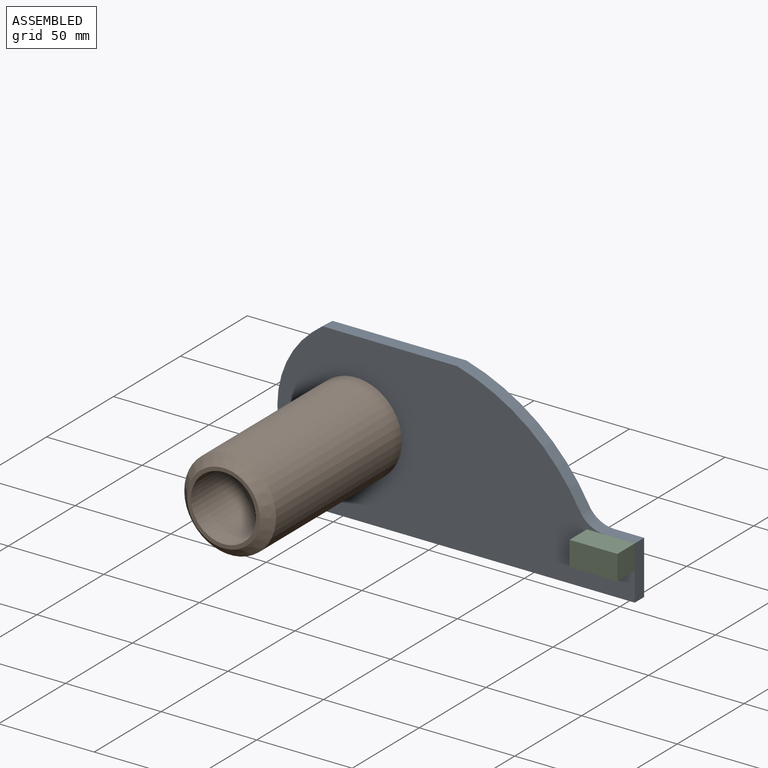
[diagram: assembled view]
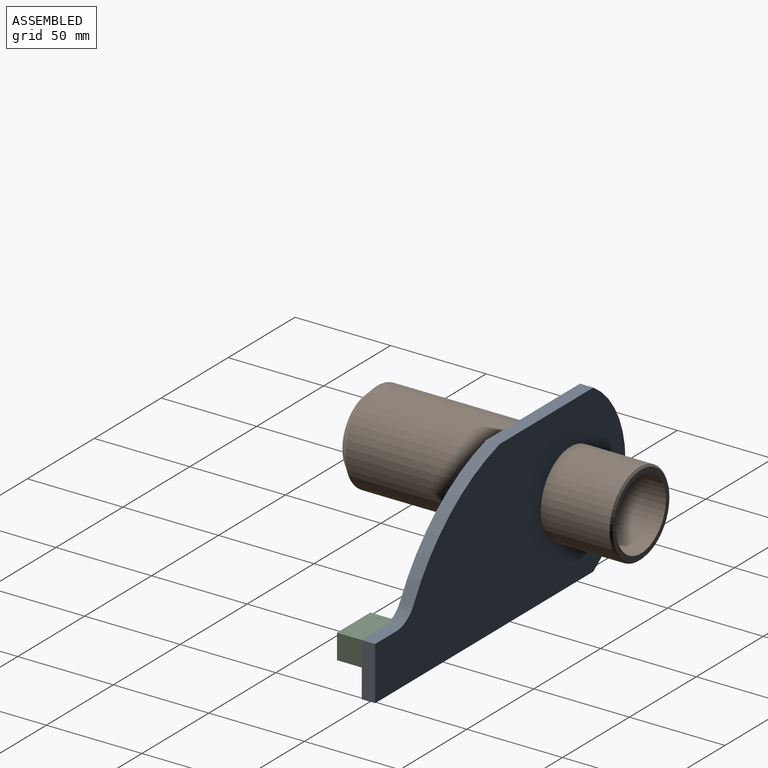
[diagram: assembled view, second angle]
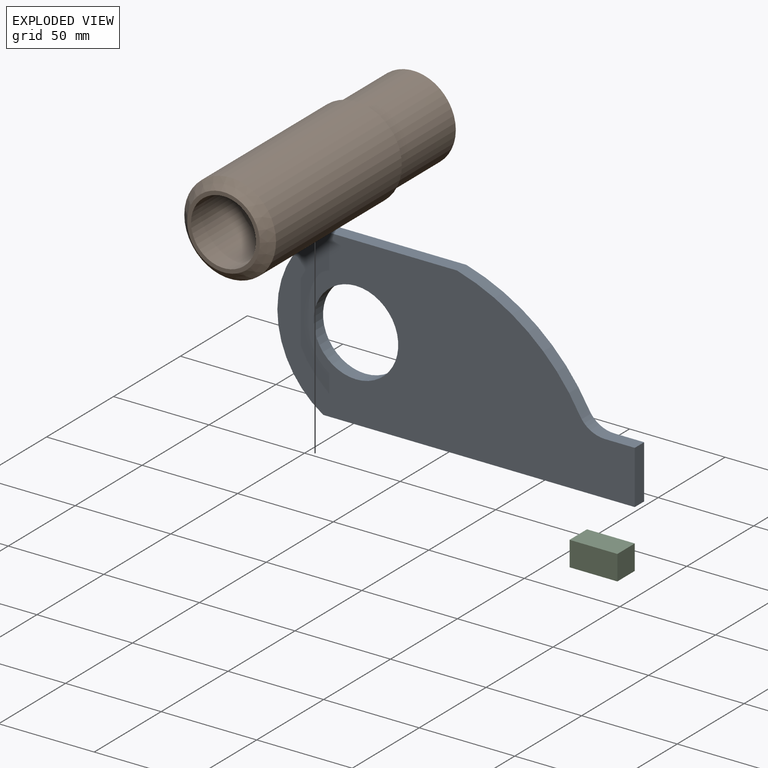
[diagram: exploded view]
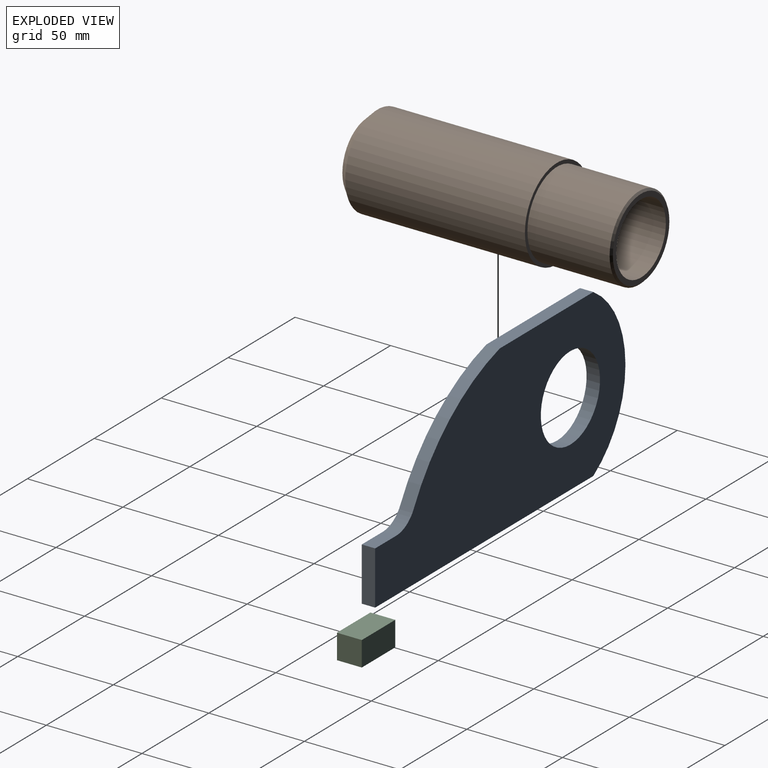
[diagram: exploded view, second angle]
ASSEMBLY  parts=3 mates=2
PART A: 10 faces, bbox 187x7x87 mm
  f0: cylinder r=51.42mm len=87mm, axis (0,1,0), area 725.9mm2, adj f1,f7,f8,f9
  f1: plane 163x7mm, normal (0,0,-1), area 1141mm2, adj f0,f2,f8,f9
  f2: plane 28x7mm, normal (1,0,0), area 196mm2, adj f1,f3,f8,f9
  f3: plane 15.7x7mm, normal (0,0,1), area 109.9mm2, adj f2,f4,f8,f9
  f4: cylinder r=15mm len=13.16mm, axis (0,1,0), area 112.3mm2, adj f3,f5,f8,f9
  f5: cylinder r=106.31mm len=64.14mm, axis (0,1,0), area 589.8mm2, adj f4,f7,f8,f9
  f6: cylinder r=22.12mm len=44.25mm, axis (0,1,0), area 973.1mm2, adj f8,f9
  f7: plane 70x7mm, normal (0,0,1), area 490mm2, adj f0,f5,f8,f9
  f8: plane 187x87mm, normal (0,-1,0), area 11255.6mm2, adj f0,f1,f2,f3,f4,f5,f6,f7
  f9: plane 187x87mm, normal (0,1,0), area 11255.6mm2, adj f0,f1,f2,f3,f4,f5,f6,f7
PART B: 10 faces, bbox 48x48x143 mm
  f0: cylinder r=24mm len=94mm, axis (0,0,-1), area 14174.9mm2, adj f4,f9
  f1: plane 38x38mm, normal (0,0,1), area 226.2mm2, adj f2,f9
  f2: cylinder r=17mm len=35mm, axis (0,0,1), area 3738.5mm2, adj f1,f6
  f3: cylinder r=22.12mm len=44.25mm, axis (0,0,-1), area 5977.7mm2, adj f4,f8
  f4: plane 48x48mm, normal (0,0,-1), area 271.7mm2, adj f0,f3
  f5: plane 42.25x42.25mm, normal (0,0,-1), area 326.8mm2, adj f7,f8
  f6: plane 37x37mm, normal (0,0,-1), area 167.3mm2, adj f2,f7
  f7: cylinder r=18.5mm len=108mm, axis (0,0,-1), area 12553.8mm2, adj f5,f6
  f8: cone r=21.12mm half-angle=45deg, axis (0,0,1), area 192.2mm2, adj f3,f5
  f9: cone r=19mm half-angle=45deg, axis (0,0,-1), area 955.2mm2, adj f0,f1
PART C: 6 faces, bbox 25x13x13 mm
  f0: plane 13x13mm, normal (1,0,0), area 169mm2, adj f1,f3,f4,f5
  f1: plane 25x13mm, normal (0,0,1), area 325mm2, adj f0,f2,f4,f5
  f2: plane 13x13mm, normal (-1,0,0), area 169mm2, adj f1,f3,f4,f5
  f3: plane 25x13mm, normal (0,0,-1), area 325mm2, adj f0,f2,f4,f5
  f4: plane 25x13mm, normal (0,-1,0), area 325mm2, adj f0,f1,f2,f3
  f5: plane 25x13mm, normal (0,1,0), area 325mm2, adj f0,f1,f2,f3
PLACE A t=(11.68,7.33,0.87)mm
PLACE B rot(axis=(1,0,0),90deg) t=(11.68,-27.17,0.87)mm
PLACE C t=(145.06,0.33,-21.13)mm
MATE fastened B.f0 <-> A.f6  axis (0,1,0) through (11.68,0.33,0.87)mm
MATE fastened C.f5 <-> A.f8  axis (0,1,0) through (157.56,0.33,-14.63)mm
